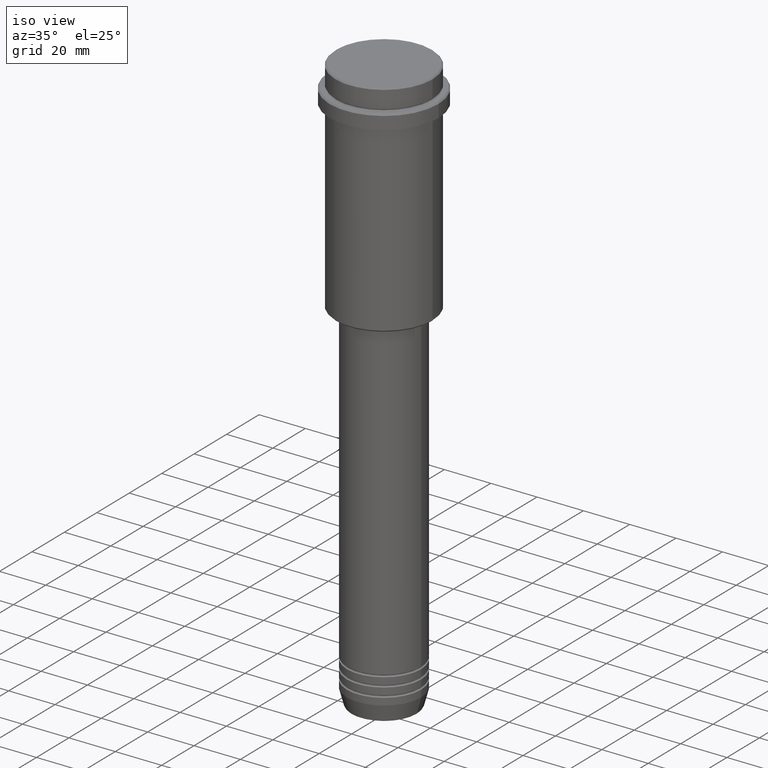
[diagram: clean part render]
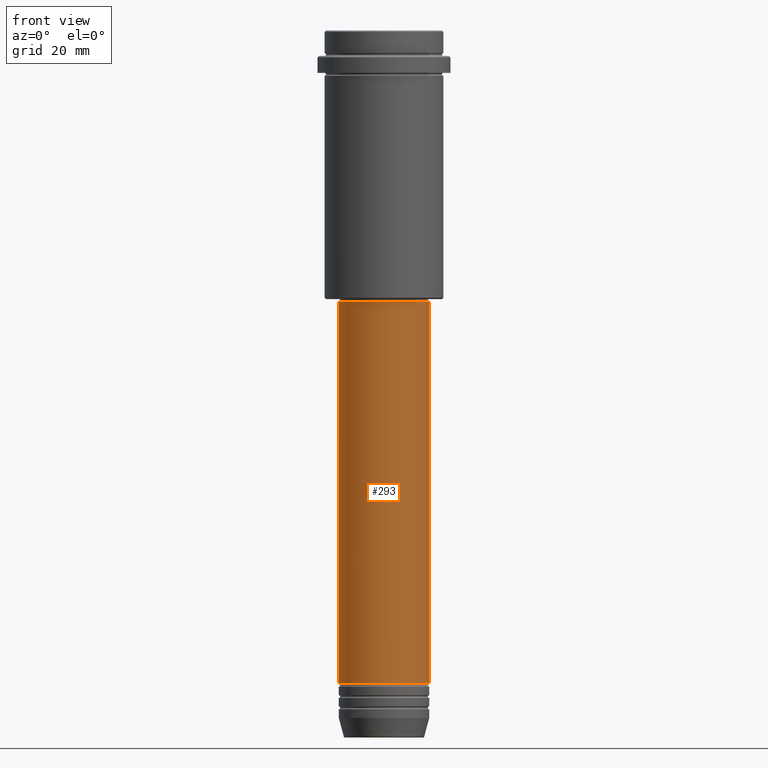
[diagram: tour spotlight — one face highlighted and labeled with its STEP entity id]
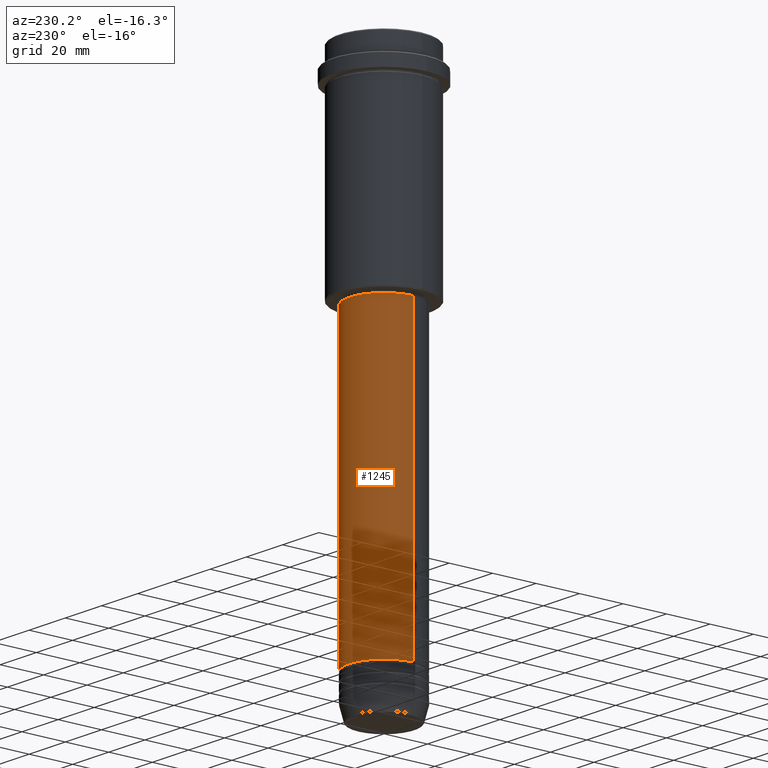
[diagram: tour spotlight — one face highlighted and labeled with its STEP entity id]
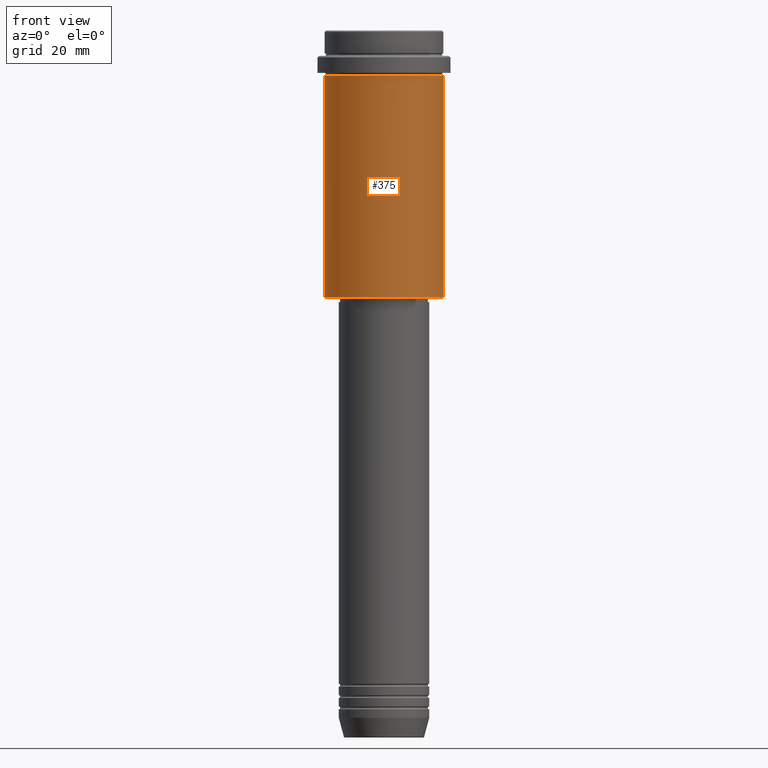
[diagram: tour spotlight — one face highlighted and labeled with its STEP entity id]
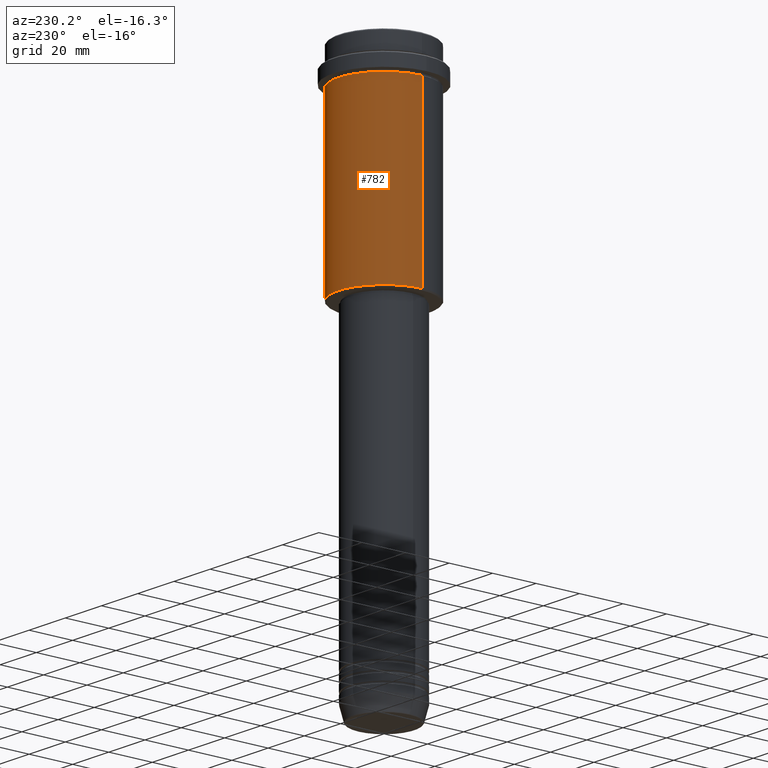
[diagram: tour spotlight — one face highlighted and labeled with its STEP entity id]
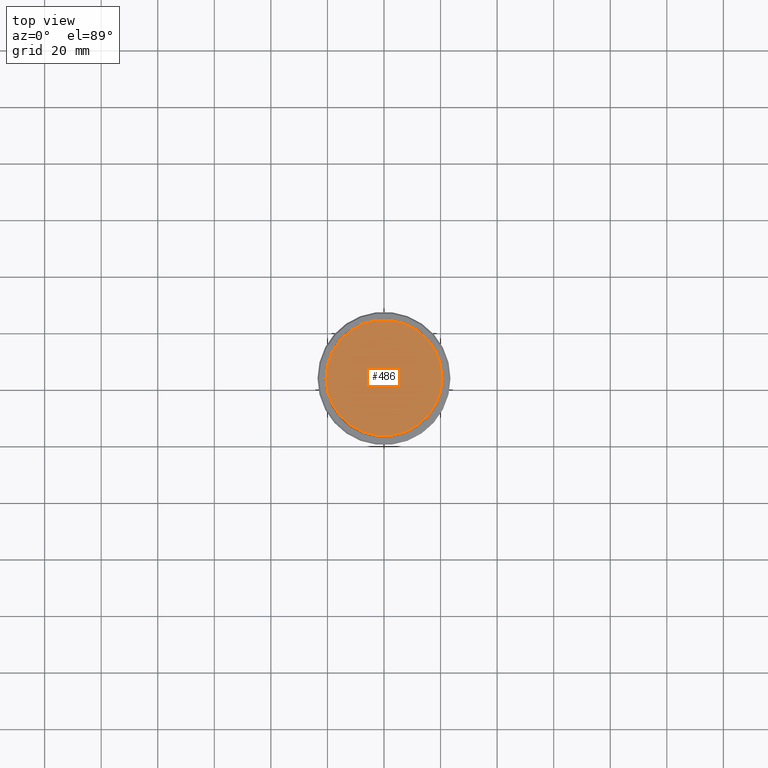
[diagram: tour spotlight — one face highlighted and labeled with its STEP entity id]
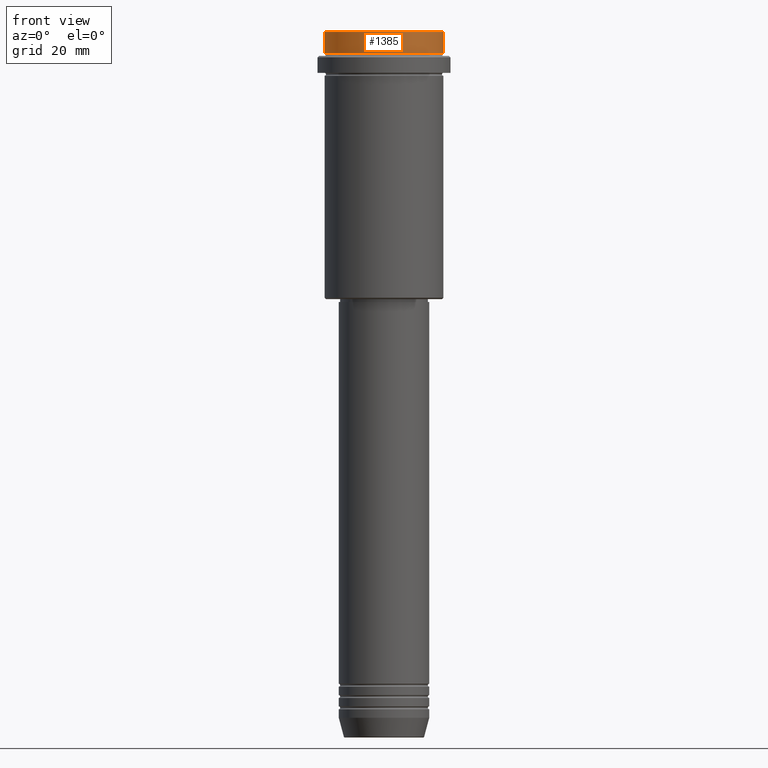
[diagram: tour spotlight — one face highlighted and labeled with its STEP entity id]
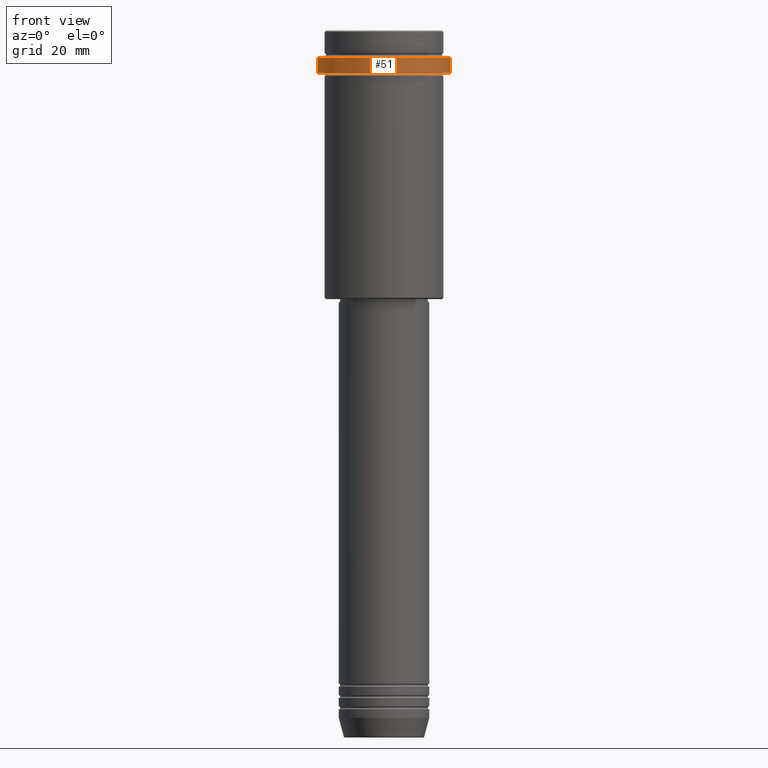
[diagram: tour spotlight — one face highlighted and labeled with its STEP entity id]
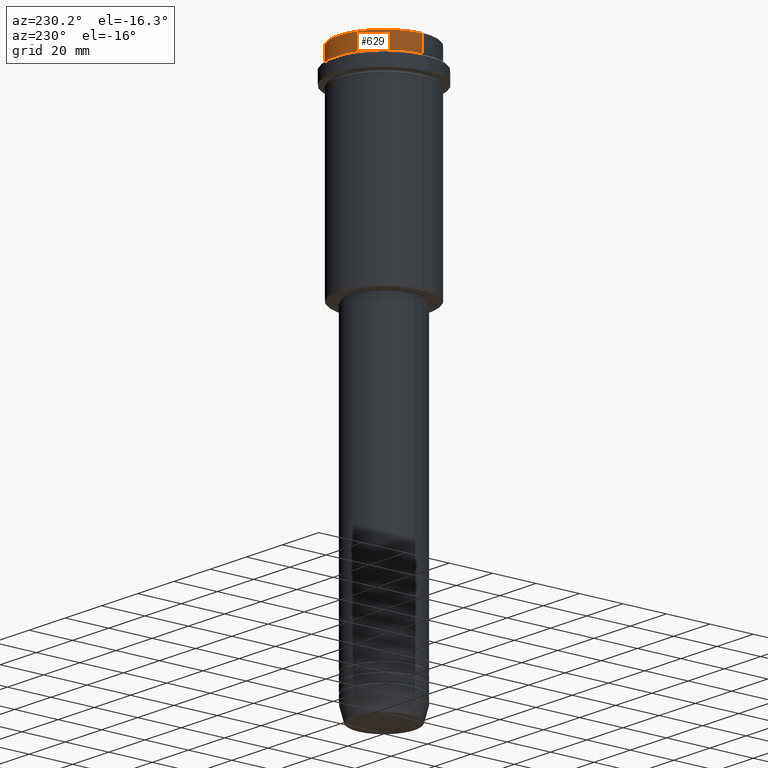
[diagram: tour spotlight — one face highlighted and labeled with its STEP entity id]
A machine part: a face-by-face anatomy tour. The part has 52 B-rep faces; the first image is the clean iso view, then the 8 largest visible faces are spotlighted one at a time (largest first), each with its STEP entity span.

Face 1 — front view, entity #293. In plain terms, the highlighted cylindrical surface (partial cylindrical patch) has radius 16 mm, axis along (-0, -0, 1).
Definition (entity closure, byte-faithful):
#22 = VERTEX_POINT ( 'NONE', #1276 ) ;
#42 = ORIENTED_EDGE ( 'NONE', *, *, #346, .T. ) ;
#76 = CARTESIAN_POINT ( 'NONE',  ( 16.00000000000000000, 0.000000000000000000, 0.000000000000000000 ) ) ;
#108 = CIRCLE ( 'NONE', #906, 16.00000000000000000 ) ;
#158 = VERTEX_POINT ( 'NONE', #186 ) ;
#167 = VERTEX_POINT ( 'NONE', #267 ) ;
#186 = CARTESIAN_POINT ( 'NONE',  ( -16.00000000000000355, 1.959434878635765526E-15, -96.00000000000000000 ) ) ;
#191 = EDGE_CURVE ( 'NONE', #158, #1019, #545, .T. ) ;
#199 = DIRECTION ( 'NONE',  ( -0.000000000000000000, -0.000000000000000000, 1.000000000000000000 ) ) ;
#267 = CARTESIAN_POINT ( 'NONE',  ( 16.00000000000000000, 0.000000000000000000, -230.9999999999998863 ) ) ;
#293 = ADVANCED_FACE ( 'NONE', ( #1271 ), #1146, .T. ) ;
#314 = VECTOR ( 'NONE', #1285, 1000.000000000000000 ) ;
#346 = EDGE_CURVE ( 'NONE', #22, #167, #108, .T. ) ;
#480 = EDGE_CURVE ( 'NONE', #22, #158, #1178, .T. ) ;
#545 = CIRCLE ( 'NONE', #1052, 16.00000000000000355 ) ;
#555 = ORIENTED_EDGE ( 'NONE', *, *, #1328, .T. ) ;
#561 = CARTESIAN_POINT ( 'NONE',  ( 16.00000000000000355, 0.000000000000000000, -96.00000000000000000 ) ) ;
#596 = DIRECTION ( 'NONE',  ( 1.000000000000000000, 0.000000000000000000, 0.000000000000000000 ) ) ;
#613 = DIRECTION ( 'NONE',  ( 1.000000000000000000, 0.000000000000000000, 0.000000000000000000 ) ) ;
#658 = DIRECTION ( 'NONE',  ( -0.000000000000000000, -0.000000000000000000, 1.000000000000000000 ) ) ;
#712 = DIRECTION ( 'NONE',  ( -0.000000000000000000, -0.000000000000000000, 1.000000000000000000 ) ) ;
#755 = CARTESIAN_POINT ( 'NONE',  ( -16.00000000000000000, 1.959434878635765131E-15, 0.000000000000000000 ) ) ;
#904 = ORIENTED_EDGE ( 'NONE', *, *, #480, .F. ) ;
#906 = AXIS2_PLACEMENT_3D ( 'NONE', #1162, #1353, #613 ) ;
#978 = AXIS2_PLACEMENT_3D ( 'NONE', #1246, #712, #596 ) ;
#1019 = VERTEX_POINT ( 'NONE', #561 ) ;
#1052 = AXIS2_PLACEMENT_3D ( 'NONE', #1198, #658, #1090 ) ;
#1090 = DIRECTION ( 'NONE',  ( 1.000000000000000000, 0.000000000000000000, 0.000000000000000000 ) ) ;
#1095 = ORIENTED_EDGE ( 'NONE', *, *, #191, .F. ) ;
#1146 = CYLINDRICAL_SURFACE ( 'NONE', #978, 16.00000000000000000 ) ;
#1162 = CARTESIAN_POINT ( 'NONE',  ( 0.000000000000000000, 0.000000000000000000, -230.9999999999998863 ) ) ;
#1178 = LINE ( 'NONE', #755, #314 ) ;
#1186 = VECTOR ( 'NONE', #199, 1000.000000000000000 ) ;
#1198 = CARTESIAN_POINT ( 'NONE',  ( 0.000000000000000000, 0.000000000000000000, -96.00000000000000000 ) ) ;
#1246 = CARTESIAN_POINT ( 'NONE',  ( 0.000000000000000000, 0.000000000000000000, 0.000000000000000000 ) ) ;
#1264 = LINE ( 'NONE', #76, #1186 ) ;
#1271 = FACE_OUTER_BOUND ( 'NONE', #1298, .T. ) ;
#1276 = CARTESIAN_POINT ( 'NONE',  ( -16.00000000000000000, 1.959434878635765131E-15, -230.9999999999998863 ) ) ;
#1285 = DIRECTION ( 'NONE',  ( -0.000000000000000000, -0.000000000000000000, 1.000000000000000000 ) ) ;
#1298 = EDGE_LOOP ( 'NONE', ( #904, #42, #555, #1095 ) ) ;
#1328 = EDGE_CURVE ( 'NONE', #167, #1019, #1264, .T. ) ;
#1353 = DIRECTION ( 'NONE',  ( -0.000000000000000000, -0.000000000000000000, 1.000000000000000000 ) ) ;

Face 2 — auxiliary view, entity #1245. In plain terms, the highlighted cylindrical surface (partial cylindrical patch) has radius 16 mm, axis along (-0, -0, 1).
Definition (entity closure, byte-faithful):
#22 = VERTEX_POINT ( 'NONE', #1276 ) ;
#76 = CARTESIAN_POINT ( 'NONE',  ( 16.00000000000000000, 0.000000000000000000, 0.000000000000000000 ) ) ;
#101 = AXIS2_PLACEMENT_3D ( 'NONE', #653, #1310, #984 ) ;
#147 = FACE_OUTER_BOUND ( 'NONE', #891, .T. ) ;
#158 = VERTEX_POINT ( 'NONE', #186 ) ;
#167 = VERTEX_POINT ( 'NONE', #267 ) ;
#186 = CARTESIAN_POINT ( 'NONE',  ( -16.00000000000000355, 1.959434878635765526E-15, -96.00000000000000000 ) ) ;
#199 = DIRECTION ( 'NONE',  ( -0.000000000000000000, -0.000000000000000000, 1.000000000000000000 ) ) ;
#255 = ORIENTED_EDGE ( 'NONE', *, *, #1328, .F. ) ;
#267 = CARTESIAN_POINT ( 'NONE',  ( 16.00000000000000000, 0.000000000000000000, -230.9999999999998863 ) ) ;
#314 = VECTOR ( 'NONE', #1285, 1000.000000000000000 ) ;
#373 = CYLINDRICAL_SURFACE ( 'NONE', #1206, 16.00000000000000000 ) ;
#399 = ORIENTED_EDGE ( 'NONE', *, *, #480, .T. ) ;
#408 = CIRCLE ( 'NONE', #1388, 16.00000000000000000 ) ;
#480 = EDGE_CURVE ( 'NONE', #22, #158, #1178, .T. ) ;
#502 = CIRCLE ( 'NONE', #101, 16.00000000000000355 ) ;
#552 = ORIENTED_EDGE ( 'NONE', *, *, #990, .F. ) ;
#561 = CARTESIAN_POINT ( 'NONE',  ( 16.00000000000000355, 0.000000000000000000, -96.00000000000000000 ) ) ;
#602 = ORIENTED_EDGE ( 'NONE', *, *, #1149, .T. ) ;
#653 = CARTESIAN_POINT ( 'NONE',  ( 0.000000000000000000, 0.000000000000000000, -96.00000000000000000 ) ) ;
#755 = CARTESIAN_POINT ( 'NONE',  ( -16.00000000000000000, 1.959434878635765131E-15, 0.000000000000000000 ) ) ;
#791 = DIRECTION ( 'NONE',  ( 1.000000000000000000, 0.000000000000000000, 0.000000000000000000 ) ) ;
#816 = DIRECTION ( 'NONE',  ( 1.000000000000000000, 0.000000000000000000, 0.000000000000000000 ) ) ;
#891 = EDGE_LOOP ( 'NONE', ( #602, #399, #552, #255 ) ) ;
#984 = DIRECTION ( 'NONE',  ( 1.000000000000000000, 0.000000000000000000, 0.000000000000000000 ) ) ;
#990 = EDGE_CURVE ( 'NONE', #1019, #158, #502, .T. ) ;
#1019 = VERTEX_POINT ( 'NONE', #561 ) ;
#1031 = DIRECTION ( 'NONE',  ( -0.000000000000000000, -0.000000000000000000, 1.000000000000000000 ) ) ;
#1149 = EDGE_CURVE ( 'NONE', #167, #22, #408, .T. ) ;
#1178 = LINE ( 'NONE', #755, #314 ) ;
#1186 = VECTOR ( 'NONE', #199, 1000.000000000000000 ) ;
#1206 = AXIS2_PLACEMENT_3D ( 'NONE', #1342, #1031, #816 ) ;
#1231 = DIRECTION ( 'NONE',  ( -0.000000000000000000, -0.000000000000000000, 1.000000000000000000 ) ) ;
#1242 = CARTESIAN_POINT ( 'NONE',  ( 0.000000000000000000, 0.000000000000000000, -230.9999999999998863 ) ) ;
#1245 = ADVANCED_FACE ( 'NONE', ( #147 ), #373, .T. ) ;
#1264 = LINE ( 'NONE', #76, #1186 ) ;
#1276 = CARTESIAN_POINT ( 'NONE',  ( -16.00000000000000000, 1.959434878635765131E-15, -230.9999999999998863 ) ) ;
#1285 = DIRECTION ( 'NONE',  ( -0.000000000000000000, -0.000000000000000000, 1.000000000000000000 ) ) ;
#1310 = DIRECTION ( 'NONE',  ( -0.000000000000000000, -0.000000000000000000, 1.000000000000000000 ) ) ;
#1328 = EDGE_CURVE ( 'NONE', #167, #1019, #1264, .T. ) ;
#1342 = CARTESIAN_POINT ( 'NONE',  ( 0.000000000000000000, 0.000000000000000000, 0.000000000000000000 ) ) ;
#1388 = AXIS2_PLACEMENT_3D ( 'NONE', #1242, #1231, #791 ) ;

Face 3 — front view, entity #375. In plain terms, the highlighted cylindrical surface (partial cylindrical patch) has radius 21 mm, axis along (-0, -0, 1).
Definition (entity closure, byte-faithful):
#44 = DIRECTION ( 'NONE',  ( 1.000000000000000000, 0.000000000000000000, 0.000000000000000000 ) ) ;
#65 = EDGE_CURVE ( 'NONE', #1326, #736, #1291, .T. ) ;
#79 = LINE ( 'NONE', #328, #817 ) ;
#134 = AXIS2_PLACEMENT_3D ( 'NONE', #455, #985, #332 ) ;
#146 = ORIENTED_EDGE ( 'NONE', *, *, #592, .T. ) ;
#154 = AXIS2_PLACEMENT_3D ( 'NONE', #809, #1129, #44 ) ;
#208 = VERTEX_POINT ( 'NONE', #547 ) ;
#279 = ORIENTED_EDGE ( 'NONE', *, *, #580, .F. ) ;
#328 = CARTESIAN_POINT ( 'NONE',  ( -21.00000000000000000, 2.571758278209441661E-15, 0.000000000000000000 ) ) ;
#332 = DIRECTION ( 'NONE',  ( 1.000000000000000000, 0.000000000000000000, 0.000000000000000000 ) ) ;
#375 = ADVANCED_FACE ( 'NONE', ( #377 ), #897, .T. ) ;
#377 = FACE_OUTER_BOUND ( 'NONE', #500, .T. ) ;
#403 = ORIENTED_EDGE ( 'NONE', *, *, #608, .F. ) ;
#432 = CARTESIAN_POINT ( 'NONE',  ( 0.000000000000000000, 0.000000000000000000, -94.49999999999994316 ) ) ;
#455 = CARTESIAN_POINT ( 'NONE',  ( 0.000000000000000000, 0.000000000000000000, -16.00000000000000355 ) ) ;
#500 = EDGE_LOOP ( 'NONE', ( #279, #146, #745, #403 ) ) ;
#504 = DIRECTION ( 'NONE',  ( -0.000000000000000000, -0.000000000000000000, 1.000000000000000000 ) ) ;
#521 = CIRCLE ( 'NONE', #1323, 21.00000000000000000 ) ;
#547 = CARTESIAN_POINT ( 'NONE',  ( -21.00000000000000000, 2.571758278209441661E-15, -94.49999999999994316 ) ) ;
#580 = EDGE_CURVE ( 'NONE', #208, #720, #79, .T. ) ;
#592 = EDGE_CURVE ( 'NONE', #208, #1326, #521, .T. ) ;
#608 = EDGE_CURVE ( 'NONE', #720, #736, #761, .T. ) ;
#720 = VERTEX_POINT ( 'NONE', #1009 ) ;
#736 = VERTEX_POINT ( 'NONE', #1336 ) ;
#745 = ORIENTED_EDGE ( 'NONE', *, *, #65, .T. ) ;
#761 = CIRCLE ( 'NONE', #134, 21.00000000000000000 ) ;
#781 = DIRECTION ( 'NONE',  ( -1.000000000000000000, 0.000000000000000000, 0.000000000000000000 ) ) ;
#809 = CARTESIAN_POINT ( 'NONE',  ( 0.000000000000000000, 0.000000000000000000, 0.000000000000000000 ) ) ;
#817 = VECTOR ( 'NONE', #1327, 1000.000000000000000 ) ;
#897 = CYLINDRICAL_SURFACE ( 'NONE', #154, 21.00000000000000000 ) ;
#985 = DIRECTION ( 'NONE',  ( -0.000000000000000000, -0.000000000000000000, 1.000000000000000000 ) ) ;
#1009 = CARTESIAN_POINT ( 'NONE',  ( -21.00000000000000000, 2.571758278209441661E-15, -16.00000000000000355 ) ) ;
#1060 = CARTESIAN_POINT ( 'NONE',  ( 21.00000000000000000, 0.000000000000000000, -94.49999999999994316 ) ) ;
#1075 = CARTESIAN_POINT ( 'NONE',  ( 21.00000000000000000, 0.000000000000000000, 0.000000000000000000 ) ) ;
#1100 = DIRECTION ( 'NONE',  ( -0.000000000000000000, -0.000000000000000000, 1.000000000000000000 ) ) ;
#1129 = DIRECTION ( 'NONE',  ( -0.000000000000000000, -0.000000000000000000, 1.000000000000000000 ) ) ;
#1291 = LINE ( 'NONE', #1075, #1340 ) ;
#1323 = AXIS2_PLACEMENT_3D ( 'NONE', #432, #1100, #781 ) ;
#1326 = VERTEX_POINT ( 'NONE', #1060 ) ;
#1327 = DIRECTION ( 'NONE',  ( -0.000000000000000000, -0.000000000000000000, 1.000000000000000000 ) ) ;
#1336 = CARTESIAN_POINT ( 'NONE',  ( 21.00000000000000000, 0.000000000000000000, -16.00000000000000355 ) ) ;
#1340 = VECTOR ( 'NONE', #504, 1000.000000000000000 ) ;

Face 4 — auxiliary view, entity #782. In plain terms, the highlighted cylindrical surface (partial cylindrical patch) has radius 21 mm, axis along (-0, -0, 1).
Definition (entity closure, byte-faithful):
#6 = DIRECTION ( 'NONE',  ( 1.000000000000000000, 0.000000000000000000, 0.000000000000000000 ) ) ;
#65 = EDGE_CURVE ( 'NONE', #1326, #736, #1291, .T. ) ;
#70 = CARTESIAN_POINT ( 'NONE',  ( 0.000000000000000000, 0.000000000000000000, -94.49999999999994316 ) ) ;
#79 = LINE ( 'NONE', #328, #817 ) ;
#142 = CYLINDRICAL_SURFACE ( 'NONE', #378, 21.00000000000000000 ) ;
#160 = DIRECTION ( 'NONE',  ( -0.000000000000000000, -0.000000000000000000, 1.000000000000000000 ) ) ;
#190 = ORIENTED_EDGE ( 'NONE', *, *, #425, .T. ) ;
#208 = VERTEX_POINT ( 'NONE', #547 ) ;
#277 = CIRCLE ( 'NONE', #454, 21.00000000000000000 ) ;
#328 = CARTESIAN_POINT ( 'NONE',  ( -21.00000000000000000, 2.571758278209441661E-15, 0.000000000000000000 ) ) ;
#378 = AXIS2_PLACEMENT_3D ( 'NONE', #719, #160, #595 ) ;
#425 = EDGE_CURVE ( 'NONE', #1326, #208, #277, .T. ) ;
#454 = AXIS2_PLACEMENT_3D ( 'NONE', #70, #937, #1235 ) ;
#504 = DIRECTION ( 'NONE',  ( -0.000000000000000000, -0.000000000000000000, 1.000000000000000000 ) ) ;
#547 = CARTESIAN_POINT ( 'NONE',  ( -21.00000000000000000, 2.571758278209441661E-15, -94.49999999999994316 ) ) ;
#580 = EDGE_CURVE ( 'NONE', #208, #720, #79, .T. ) ;
#595 = DIRECTION ( 'NONE',  ( 1.000000000000000000, 0.000000000000000000, 0.000000000000000000 ) ) ;
#678 = CARTESIAN_POINT ( 'NONE',  ( 0.000000000000000000, 0.000000000000000000, -16.00000000000000355 ) ) ;
#704 = ORIENTED_EDGE ( 'NONE', *, *, #65, .F. ) ;
#719 = CARTESIAN_POINT ( 'NONE',  ( 0.000000000000000000, 0.000000000000000000, 0.000000000000000000 ) ) ;
#720 = VERTEX_POINT ( 'NONE', #1009 ) ;
#736 = VERTEX_POINT ( 'NONE', #1336 ) ;
#737 = AXIS2_PLACEMENT_3D ( 'NONE', #678, #890, #6 ) ;
#757 = CIRCLE ( 'NONE', #737, 21.00000000000000000 ) ;
#782 = ADVANCED_FACE ( 'NONE', ( #908 ), #142, .T. ) ;
#817 = VECTOR ( 'NONE', #1327, 1000.000000000000000 ) ;
#835 = EDGE_LOOP ( 'NONE', ( #190, #916, #1033, #704 ) ) ;
#890 = DIRECTION ( 'NONE',  ( -0.000000000000000000, -0.000000000000000000, 1.000000000000000000 ) ) ;
#908 = FACE_OUTER_BOUND ( 'NONE', #835, .T. ) ;
#916 = ORIENTED_EDGE ( 'NONE', *, *, #580, .T. ) ;
#937 = DIRECTION ( 'NONE',  ( -0.000000000000000000, -0.000000000000000000, 1.000000000000000000 ) ) ;
#986 = EDGE_CURVE ( 'NONE', #736, #720, #757, .T. ) ;
#1009 = CARTESIAN_POINT ( 'NONE',  ( -21.00000000000000000, 2.571758278209441661E-15, -16.00000000000000355 ) ) ;
#1033 = ORIENTED_EDGE ( 'NONE', *, *, #986, .F. ) ;
#1060 = CARTESIAN_POINT ( 'NONE',  ( 21.00000000000000000, 0.000000000000000000, -94.49999999999994316 ) ) ;
#1075 = CARTESIAN_POINT ( 'NONE',  ( 21.00000000000000000, 0.000000000000000000, 0.000000000000000000 ) ) ;
#1235 = DIRECTION ( 'NONE',  ( -1.000000000000000000, 0.000000000000000000, 0.000000000000000000 ) ) ;
#1291 = LINE ( 'NONE', #1075, #1340 ) ;
#1326 = VERTEX_POINT ( 'NONE', #1060 ) ;
#1327 = DIRECTION ( 'NONE',  ( -0.000000000000000000, -0.000000000000000000, 1.000000000000000000 ) ) ;
#1336 = CARTESIAN_POINT ( 'NONE',  ( 21.00000000000000000, 0.000000000000000000, -16.00000000000000355 ) ) ;
#1340 = VECTOR ( 'NONE', #504, 1000.000000000000000 ) ;

Face 5 — top view, entity #486. In plain terms, the highlighted planar face has unit normal (0, -0, 1).
Definition (entity closure, byte-faithful):
#1 = CARTESIAN_POINT ( 'NONE',  ( 0.000000000000000000, 0.000000000000000000, 0.000000000000000000 ) ) ;
#103 = CIRCLE ( 'NONE', #1096, 20.50000000000001776 ) ;
#185 = PLANE ( 'NONE',  #384 ) ;
#207 = CARTESIAN_POINT ( 'NONE',  ( 0.000000000000000000, 0.000000000000000000, 0.000000000000000000 ) ) ;
#213 = DIRECTION ( 'NONE',  ( 0.000000000000000000, -0.000000000000000000, 1.000000000000000000 ) ) ;
#219 = DIRECTION ( 'NONE',  ( 1.000000000000000000, 0.000000000000000000, 0.000000000000000000 ) ) ;
#384 = AXIS2_PLACEMENT_3D ( 'NONE', #207, #213, #421 ) ;
#421 = DIRECTION ( 'NONE',  ( 1.000000000000000000, 0.000000000000000000, 0.000000000000000000 ) ) ;
#445 = VERTEX_POINT ( 'NONE', #1377 ) ;
#486 = ADVANCED_FACE ( 'NONE', ( #1170 ), #185, .T. ) ;
#507 = DIRECTION ( 'NONE',  ( 1.000000000000000000, 0.000000000000000000, 0.000000000000000000 ) ) ;
#509 = ORIENTED_EDGE ( 'NONE', *, *, #1368, .T. ) ;
#586 = AXIS2_PLACEMENT_3D ( 'NONE', #1, #1314, #219 ) ;
#598 = ORIENTED_EDGE ( 'NONE', *, *, #1085, .T. ) ;
#611 = CIRCLE ( 'NONE', #586, 20.50000000000001776 ) ;
#675 = VERTEX_POINT ( 'NONE', #877 ) ;
#741 = CARTESIAN_POINT ( 'NONE',  ( 0.000000000000000000, 0.000000000000000000, 0.000000000000000000 ) ) ;
#877 = CARTESIAN_POINT ( 'NONE',  ( -20.50000000000001776, 0.000000000000000000, 0.000000000000000000 ) ) ;
#962 = DIRECTION ( 'NONE',  ( -0.000000000000000000, -0.000000000000000000, 1.000000000000000000 ) ) ;
#1085 = EDGE_CURVE ( 'NONE', #445, #675, #611, .T. ) ;
#1096 = AXIS2_PLACEMENT_3D ( 'NONE', #741, #962, #507 ) ;
#1170 = FACE_OUTER_BOUND ( 'NONE', #1329, .T. ) ;
#1314 = DIRECTION ( 'NONE',  ( -0.000000000000000000, -0.000000000000000000, 1.000000000000000000 ) ) ;
#1329 = EDGE_LOOP ( 'NONE', ( #509, #598 ) ) ;
#1368 = EDGE_CURVE ( 'NONE', #675, #445, #103, .T. ) ;
#1377 = CARTESIAN_POINT ( 'NONE',  ( 20.50000000000001776, 2.541142108230759057E-15, 0.000000000000000000 ) ) ;

Face 6 — front view, entity #1385. In plain terms, the highlighted cylindrical surface (partial cylindrical patch) has radius 21 mm, axis along (-0, -0, 1).
Definition (entity closure, byte-faithful):
#18 = CARTESIAN_POINT ( 'NONE',  ( -21.00000000000000000, 2.571758278209441661E-15, 0.000000000000000000 ) ) ;
#61 = AXIS2_PLACEMENT_3D ( 'NONE', #1180, #393, #286 ) ;
#140 = VERTEX_POINT ( 'NONE', #576 ) ;
#161 = CARTESIAN_POINT ( 'NONE',  ( -21.00000000000000000, 2.571758278209441661E-15, -0.4999999999999553690 ) ) ;
#187 = CYLINDRICAL_SURFACE ( 'NONE', #61, 21.00000000000000000 ) ;
#241 = VERTEX_POINT ( 'NONE', #626 ) ;
#243 = DIRECTION ( 'NONE',  ( -0.000000000000000000, -0.000000000000000000, 1.000000000000000000 ) ) ;
#264 = CARTESIAN_POINT ( 'NONE',  ( 0.000000000000000000, 0.000000000000000000, -0.4999999999999553690 ) ) ;
#286 = DIRECTION ( 'NONE',  ( 1.000000000000000000, 0.000000000000000000, 0.000000000000000000 ) ) ;
#296 = VERTEX_POINT ( 'NONE', #161 ) ;
#306 = DIRECTION ( 'NONE',  ( -0.000000000000000000, -0.000000000000000000, 1.000000000000000000 ) ) ;
#309 = EDGE_LOOP ( 'NONE', ( #359, #815, #1142, #1172 ) ) ;
#359 = ORIENTED_EDGE ( 'NONE', *, *, #682, .F. ) ;
#362 = VERTEX_POINT ( 'NONE', #722 ) ;
#393 = DIRECTION ( 'NONE',  ( -0.000000000000000000, -0.000000000000000000, 1.000000000000000000 ) ) ;
#402 = FACE_OUTER_BOUND ( 'NONE', #309, .T. ) ;
#410 = LINE ( 'NONE', #951, #863 ) ;
#444 = DIRECTION ( 'NONE',  ( 1.000000000000000000, 0.000000000000000000, 0.000000000000000000 ) ) ;
#548 = LINE ( 'NONE', #18, #1362 ) ;
#576 = CARTESIAN_POINT ( 'NONE',  ( -21.00000000000000000, 2.571758278209441661E-15, -7.999999999999998224 ) ) ;
#626 = CARTESIAN_POINT ( 'NONE',  ( 21.00000000000000000, 0.000000000000000000, -0.4999999999999553690 ) ) ;
#660 = EDGE_CURVE ( 'NONE', #140, #362, #779, .T. ) ;
#682 = EDGE_CURVE ( 'NONE', #140, #296, #548, .T. ) ;
#722 = CARTESIAN_POINT ( 'NONE',  ( 21.00000000000000000, 0.000000000000000000, -7.999999999999998224 ) ) ;
#779 = CIRCLE ( 'NONE', #1317, 21.00000000000000000 ) ;
#815 = ORIENTED_EDGE ( 'NONE', *, *, #660, .T. ) ;
#832 = EDGE_CURVE ( 'NONE', #241, #296, #995, .T. ) ;
#862 = AXIS2_PLACEMENT_3D ( 'NONE', #264, #1133, #931 ) ;
#863 = VECTOR ( 'NONE', #306, 1000.000000000000000 ) ;
#931 = DIRECTION ( 'NONE',  ( 1.000000000000000000, 0.000000000000000000, 0.000000000000000000 ) ) ;
#951 = CARTESIAN_POINT ( 'NONE',  ( 21.00000000000000000, 0.000000000000000000, 0.000000000000000000 ) ) ;
#995 = CIRCLE ( 'NONE', #862, 21.00000000000000000 ) ;
#1133 = DIRECTION ( 'NONE',  ( 0.000000000000000000, 0.000000000000000000, -1.000000000000000000 ) ) ;
#1142 = ORIENTED_EDGE ( 'NONE', *, *, #1396, .T. ) ;
#1172 = ORIENTED_EDGE ( 'NONE', *, *, #832, .T. ) ;
#1180 = CARTESIAN_POINT ( 'NONE',  ( 0.000000000000000000, 0.000000000000000000, 0.000000000000000000 ) ) ;
#1203 = DIRECTION ( 'NONE',  ( -0.000000000000000000, -0.000000000000000000, 1.000000000000000000 ) ) ;
#1218 = CARTESIAN_POINT ( 'NONE',  ( 0.000000000000000000, 0.000000000000000000, -7.999999999999998224 ) ) ;
#1317 = AXIS2_PLACEMENT_3D ( 'NONE', #1218, #243, #444 ) ;
#1362 = VECTOR ( 'NONE', #1203, 1000.000000000000000 ) ;
#1385 = ADVANCED_FACE ( 'NONE', ( #402 ), #187, .T. ) ;
#1396 = EDGE_CURVE ( 'NONE', #362, #241, #410, .T. ) ;

Face 7 — front view, entity #51. In plain terms, the highlighted cylindrical surface (partial cylindrical patch) has radius 23.5 mm, axis along (-0, -0, 1).
Definition (entity closure, byte-faithful):
#37 = CIRCLE ( 'NONE', #524, 23.50000000000000355 ) ;
#51 = ADVANCED_FACE ( 'NONE', ( #184 ), #842, .T. ) ;
#68 = ORIENTED_EDGE ( 'NONE', *, *, #235, .T. ) ;
#88 = DIRECTION ( 'NONE',  ( 0.000000000000000000, 0.000000000000000000, -1.000000000000000000 ) ) ;
#184 = FACE_OUTER_BOUND ( 'NONE', #1269, .T. ) ;
#197 = DIRECTION ( 'NONE',  ( 1.000000000000000000, 0.000000000000000000, 0.000000000000000000 ) ) ;
#235 = EDGE_CURVE ( 'NONE', #1126, #941, #37, .T. ) ;
#247 = AXIS2_PLACEMENT_3D ( 'NONE', #511, #88, #197 ) ;
#439 = EDGE_CURVE ( 'NONE', #1061, #1039, #641, .T. ) ;
#479 = ORIENTED_EDGE ( 'NONE', *, *, #439, .T. ) ;
#511 = CARTESIAN_POINT ( 'NONE',  ( 0.000000000000000000, 0.000000000000000000, -9.499999999999944933 ) ) ;
#524 = AXIS2_PLACEMENT_3D ( 'NONE', #534, #972, #1404 ) ;
#534 = CARTESIAN_POINT ( 'NONE',  ( 0.000000000000000000, 0.000000000000000000, -15.00000000000000000 ) ) ;
#536 = ORIENTED_EDGE ( 'NONE', *, *, #732, .F. ) ;
#544 = CARTESIAN_POINT ( 'NONE',  ( 23.50000000000000000, 0.000000000000000000, 0.000000000000000000 ) ) ;
#554 = CARTESIAN_POINT ( 'NONE',  ( -23.50000000000000000, 2.877919977996280320E-15, -9.499999999999944933 ) ) ;
#587 = LINE ( 'NONE', #800, #826 ) ;
#620 = CARTESIAN_POINT ( 'NONE',  ( 23.50000000000000355, 0.000000000000000000, -15.00000000000000000 ) ) ;
#641 = CIRCLE ( 'NONE', #247, 23.50000000000000000 ) ;
#700 = DIRECTION ( 'NONE',  ( -0.000000000000000000, -0.000000000000000000, 1.000000000000000000 ) ) ;
#732 = EDGE_CURVE ( 'NONE', #1126, #1039, #587, .T. ) ;
#778 = CARTESIAN_POINT ( 'NONE',  ( 23.50000000000000000, 0.000000000000000000, -9.499999999999944933 ) ) ;
#786 = ORIENTED_EDGE ( 'NONE', *, *, #1049, .T. ) ;
#797 = CARTESIAN_POINT ( 'NONE',  ( -23.50000000000000711, 2.877919977996281109E-15, -15.00000000000000000 ) ) ;
#800 = CARTESIAN_POINT ( 'NONE',  ( -23.50000000000000000, 2.877919977996280320E-15, 0.000000000000000000 ) ) ;
#826 = VECTOR ( 'NONE', #700, 1000.000000000000000 ) ;
#842 = CYLINDRICAL_SURFACE ( 'NONE', #1320, 23.50000000000000000 ) ;
#941 = VERTEX_POINT ( 'NONE', #620 ) ;
#972 = DIRECTION ( 'NONE',  ( -0.000000000000000000, -0.000000000000000000, 1.000000000000000000 ) ) ;
#1039 = VERTEX_POINT ( 'NONE', #554 ) ;
#1047 = VECTOR ( 'NONE', #1098, 1000.000000000000000 ) ;
#1049 = EDGE_CURVE ( 'NONE', #941, #1061, #1192, .T. ) ;
#1061 = VERTEX_POINT ( 'NONE', #778 ) ;
#1072 = CARTESIAN_POINT ( 'NONE',  ( 0.000000000000000000, 0.000000000000000000, 0.000000000000000000 ) ) ;
#1098 = DIRECTION ( 'NONE',  ( -0.000000000000000000, -0.000000000000000000, 1.000000000000000000 ) ) ;
#1126 = VERTEX_POINT ( 'NONE', #797 ) ;
#1154 = DIRECTION ( 'NONE',  ( 1.000000000000000000, 0.000000000000000000, 0.000000000000000000 ) ) ;
#1192 = LINE ( 'NONE', #544, #1047 ) ;
#1259 = DIRECTION ( 'NONE',  ( -0.000000000000000000, -0.000000000000000000, 1.000000000000000000 ) ) ;
#1269 = EDGE_LOOP ( 'NONE', ( #536, #68, #786, #479 ) ) ;
#1320 = AXIS2_PLACEMENT_3D ( 'NONE', #1072, #1259, #1154 ) ;
#1404 = DIRECTION ( 'NONE',  ( 1.000000000000000000, 0.000000000000000000, 0.000000000000000000 ) ) ;

Face 8 — auxiliary view, entity #629. In plain terms, the highlighted cylindrical surface (partial cylindrical patch) has radius 21 mm, axis along (-0, -0, 1).
Definition (entity closure, byte-faithful):
#18 = CARTESIAN_POINT ( 'NONE',  ( -21.00000000000000000, 2.571758278209441661E-15, 0.000000000000000000 ) ) ;
#98 = CYLINDRICAL_SURFACE ( 'NONE', #411, 21.00000000000000000 ) ;
#140 = VERTEX_POINT ( 'NONE', #576 ) ;
#161 = CARTESIAN_POINT ( 'NONE',  ( -21.00000000000000000, 2.571758278209441661E-15, -0.4999999999999553690 ) ) ;
#163 = EDGE_CURVE ( 'NONE', #362, #140, #1074, .T. ) ;
#183 = ORIENTED_EDGE ( 'NONE', *, *, #682, .T. ) ;
#241 = VERTEX_POINT ( 'NONE', #626 ) ;
#296 = VERTEX_POINT ( 'NONE', #161 ) ;
#306 = DIRECTION ( 'NONE',  ( -0.000000000000000000, -0.000000000000000000, 1.000000000000000000 ) ) ;
#362 = VERTEX_POINT ( 'NONE', #722 ) ;
#382 = AXIS2_PLACEMENT_3D ( 'NONE', #1371, #943, #1378 ) ;
#410 = LINE ( 'NONE', #951, #863 ) ;
#411 = AXIS2_PLACEMENT_3D ( 'NONE', #867, #669, #794 ) ;
#548 = LINE ( 'NONE', #18, #1362 ) ;
#576 = CARTESIAN_POINT ( 'NONE',  ( -21.00000000000000000, 2.571758278209441661E-15, -7.999999999999998224 ) ) ;
#600 = ORIENTED_EDGE ( 'NONE', *, *, #163, .T. ) ;
#614 = AXIS2_PLACEMENT_3D ( 'NONE', #766, #973, #1089 ) ;
#626 = CARTESIAN_POINT ( 'NONE',  ( 21.00000000000000000, 0.000000000000000000, -0.4999999999999553690 ) ) ;
#629 = ADVANCED_FACE ( 'NONE', ( #872 ), #98, .T. ) ;
#633 = ORIENTED_EDGE ( 'NONE', *, *, #1396, .F. ) ;
#669 = DIRECTION ( 'NONE',  ( -0.000000000000000000, -0.000000000000000000, 1.000000000000000000 ) ) ;
#682 = EDGE_CURVE ( 'NONE', #140, #296, #548, .T. ) ;
#722 = CARTESIAN_POINT ( 'NONE',  ( 21.00000000000000000, 0.000000000000000000, -7.999999999999998224 ) ) ;
#766 = CARTESIAN_POINT ( 'NONE',  ( 0.000000000000000000, 0.000000000000000000, -0.4999999999999553690 ) ) ;
#770 = EDGE_LOOP ( 'NONE', ( #600, #183, #1000, #633 ) ) ;
#794 = DIRECTION ( 'NONE',  ( 1.000000000000000000, 0.000000000000000000, 0.000000000000000000 ) ) ;
#863 = VECTOR ( 'NONE', #306, 1000.000000000000000 ) ;
#867 = CARTESIAN_POINT ( 'NONE',  ( 0.000000000000000000, 0.000000000000000000, 0.000000000000000000 ) ) ;
#872 = FACE_OUTER_BOUND ( 'NONE', #770, .T. ) ;
#943 = DIRECTION ( 'NONE',  ( -0.000000000000000000, -0.000000000000000000, 1.000000000000000000 ) ) ;
#951 = CARTESIAN_POINT ( 'NONE',  ( 21.00000000000000000, 0.000000000000000000, 0.000000000000000000 ) ) ;
#973 = DIRECTION ( 'NONE',  ( 0.000000000000000000, 0.000000000000000000, -1.000000000000000000 ) ) ;
#1000 = ORIENTED_EDGE ( 'NONE', *, *, #1101, .T. ) ;
#1074 = CIRCLE ( 'NONE', #382, 21.00000000000000000 ) ;
#1089 = DIRECTION ( 'NONE',  ( 1.000000000000000000, 0.000000000000000000, 0.000000000000000000 ) ) ;
#1101 = EDGE_CURVE ( 'NONE', #296, #241, #1227, .T. ) ;
#1203 = DIRECTION ( 'NONE',  ( -0.000000000000000000, -0.000000000000000000, 1.000000000000000000 ) ) ;
#1227 = CIRCLE ( 'NONE', #614, 21.00000000000000000 ) ;
#1362 = VECTOR ( 'NONE', #1203, 1000.000000000000000 ) ;
#1371 = CARTESIAN_POINT ( 'NONE',  ( 0.000000000000000000, 0.000000000000000000, -7.999999999999998224 ) ) ;
#1378 = DIRECTION ( 'NONE',  ( 1.000000000000000000, 0.000000000000000000, 0.000000000000000000 ) ) ;
#1396 = EDGE_CURVE ( 'NONE', #362, #241, #410, .T. ) ;